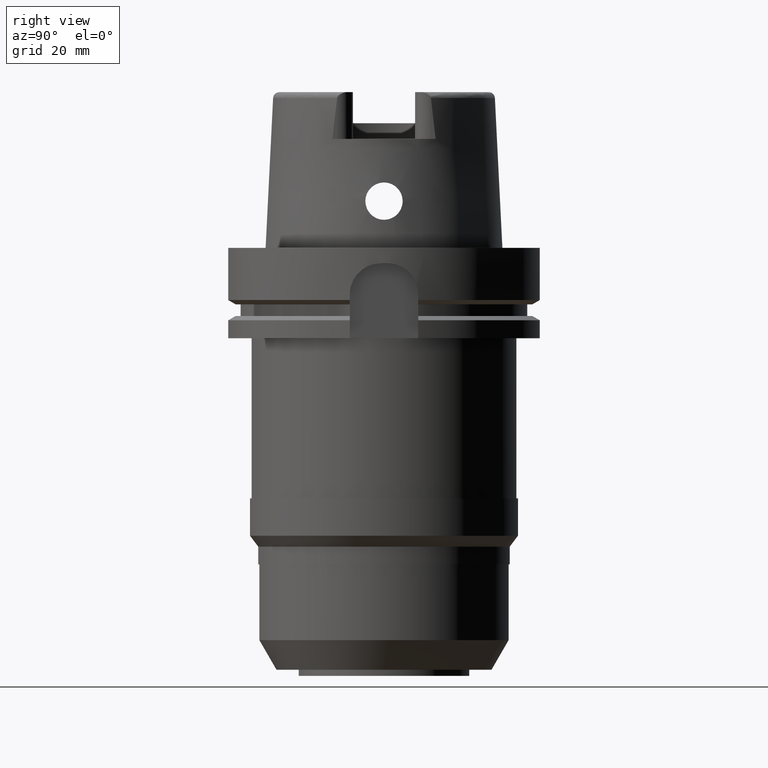
[diagram: clean part render]
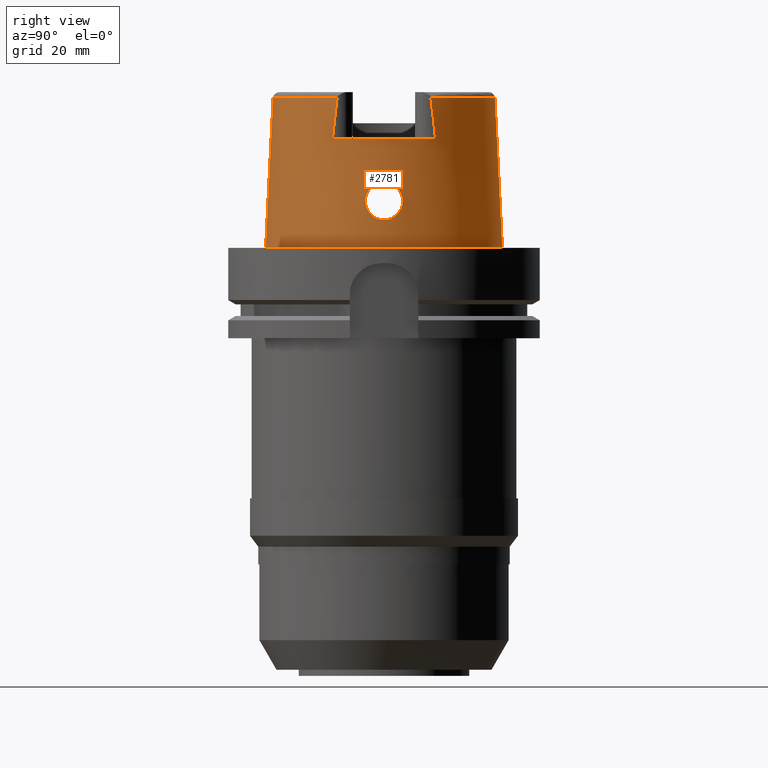
[diagram: same view with one face highlighted and labeled with its STEP entity id]
A machine part, right view. The second image highlights one B-rep face of the part: STEP entity #2781.
In plain terms, the highlighted conical surface has half-angle 2.862 deg.
Its self-contained STEP definition (entity closure, byte-faithful):
#207=CARTESIAN_POINT('',(3.225000552017E1,-1.506439828496E1,4.810004173311E1));
#212=CARTESIAN_POINT('',(0.E0,0.E0,4.809987853799E1));
#213=DIRECTION('',(0.E0,0.E0,-1.E0));
#214=DIRECTION('',(9.060280460805E-1,-4.232176505246E-1,0.E0));
#215=AXIS2_PLACEMENT_3D('',#212,#213,#214);
#238=DIRECTION('',(5.154182075151E-5,-4.993927430816E-2,-9.987522546783E-1));
#239=VECTOR('',#238,4.815996991514E1);
#240=CARTESIAN_POINT('',(-2.482252536761E-3,-3.559494263425E1,
4.809987853799E1));
#241=LINE('',#240,#239);
#293=CARTESIAN_POINT('',(3.224999527489E1,1.655287543599E1,3.5E1));
#294=CARTESIAN_POINT('',(3.224999527489E1,1.639226210430E1,3.646677430492E1));
#295=CARTESIAN_POINT('',(3.224999958003E1,1.606837255504E1,3.939292736372E1));
#296=CARTESIAN_POINT('',(3.225000855756E1,1.557203229378E1,4.375938270248E1));
#297=CARTESIAN_POINT('',(3.224998031234E1,1.523513271769E1,4.665592202925E1));
#298=CARTESIAN_POINT('',(3.224998031234E1,1.506460258816E1,4.809931688652E1));
#303=DIRECTION('',(-5.154182075159E-5,4.993927430816E-2,-9.987522546783E-1));
#304=VECTOR('',#303,4.815996991514E1);
#305=CARTESIAN_POINT('',(2.482252536765E-3,3.559494263425E1,4.809987853799E1));
#306=LINE('',#305,#304);
#310=CARTESIAN_POINT('',(3.225000552017E1,-1.506439828496E1,4.810004173311E1));
#311=CARTESIAN_POINT('',(3.225000552017E1,-1.523503289021E1,4.665577809747E1));
#312=CARTESIAN_POINT('',(3.225000026293E1,-1.557219472961E1,4.376011578007E1));
#313=CARTESIAN_POINT('',(3.224999079948E1,-1.606856473512E1,3.939344260743E1));
#314=CARTESIAN_POINT('',(3.225002129259E1,-1.639212166417E1,3.646699412941E1));
#315=CARTESIAN_POINT('',(3.225002129259E1,-1.655276054267E1,3.5E1));
#320=CARTESIAN_POINT('',(3.694998175923E1,-1.394597051989E-13,2.1E1));
#321=CARTESIAN_POINT('',(3.694998175923E1,-5.236335705299E-1,2.1E1));
#322=CARTESIAN_POINT('',(3.693410543298E1,-1.571767760804E0,2.086209925658E1));
#323=CARTESIAN_POINT('',(3.687080879441E1,-3.039493228903E0,2.025366474255E1));
#324=CARTESIAN_POINT('',(3.679101331926E1,-4.300222920726E0,1.928283760958E1));
#325=CARTESIAN_POINT('',(3.672650962015E1,-5.261062781963E0,1.802514352625E1));
#326=CARTESIAN_POINT('',(3.670708398467E1,-5.863659226400E0,1.656240722719E1));
#327=CARTESIAN_POINT('',(3.675209356062E1,-6.067749483430E0,1.500486461439E1));
#328=CARTESIAN_POINT('',(3.686489841208E1,-5.865334894686E0,1.344205196552E1));
#329=CARTESIAN_POINT('',(3.703209000139E1,-5.261857943299E0,1.197544080722E1));
#330=CARTESIAN_POINT('',(3.722304604183E1,-4.296369000015E0,1.071210915758E1));
#331=CARTESIAN_POINT('',(3.739936292475E1,-3.027007743276E0,9.738789454775E0));
#332=CARTESIAN_POINT('',(3.752122331157E1,-1.560397515004E0,9.135520788725E0));
#333=CARTESIAN_POINT('',(3.755000165825E1,-5.188928194064E-1,9.E0));
#334=CARTESIAN_POINT('',(3.755000165825E1,0.E0,9.E0));
#339=CARTESIAN_POINT('',(3.755000165825E1,0.E0,9.E0));
#340=CARTESIAN_POINT('',(3.755000165825E1,5.181344353179E-1,9.E0));
#341=CARTESIAN_POINT('',(3.752124845614E1,1.556205549035E0,9.135452083139E0));
#342=CARTESIAN_POINT('',(3.740111094064E1,3.009071337397E0,9.730058025423E0));
#343=CARTESIAN_POINT('',(3.722661675986E1,4.274847313847E0,1.069118436885E1));
#344=CARTESIAN_POINT('',(3.703524984132E1,5.248842302649E0,1.195119914056E1));
#345=CARTESIAN_POINT('',(3.686585496364E1,5.863515480283E0,1.342943106647E1));
#346=CARTESIAN_POINT('',(3.675177425375E1,6.068817524186E0,1.500759190798E1));
#347=CARTESIAN_POINT('',(3.670699429574E1,5.861200167016E0,1.657223922902E1));
#348=CARTESIAN_POINT('',(3.672678544665E1,5.257000663823E0,1.803104809936E1));
#349=CARTESIAN_POINT('',(3.679101944815E1,4.299990013988E0,1.928228496344E1));
#350=CARTESIAN_POINT('',(3.687062166845E1,3.042744981947E0,2.025171888453E1));
#351=CARTESIAN_POINT('',(3.693404976500E1,1.574195524507E0,2.086163408373E1));
#352=CARTESIAN_POINT('',(3.694998175923E1,5.246774663234E-1,2.1E1));
#353=CARTESIAN_POINT('',(3.694998175923E1,-1.394597051989E-13,2.1E1));
#388=CARTESIAN_POINT('',(0.E0,0.E0,3.5E1));
#389=DIRECTION('',(0.E0,0.E0,-1.E0));
#390=DIRECTION('',(8.896561898443E-1,4.566309931135E-1,0.E0));
#391=AXIS2_PLACEMENT_3D('',#388,#389,#390);
#1959=CARTESIAN_POINT('',(0.E0,0.E0,1.023181539495E-12));
#1960=DIRECTION('',(0.E0,0.E0,1.E0));
#1961=DIRECTION('',(0.E0,-1.E0,0.E0));
#1962=AXIS2_PLACEMENT_3D('',#1959,#1960,#1961);
#2211=CARTESIAN_POINT('',(0.E0,0.E0,4.809987853799E1));
#2212=DIRECTION('',(0.E0,0.E0,-1.E0));
#2213=DIRECTION('',(0.E0,1.E0,0.E0));
#2214=AXIS2_PLACEMENT_3D('',#2211,#2212,#2213);
#2318=CARTESIAN_POINT('',(0.E0,-3.559494289391E1,4.809987853799E1));
#2319=VERTEX_POINT('',#2318);
#2320=CARTESIAN_POINT('',(0.E0,-3.800001658252E1,6.821210263297E-13));
#2321=VERTEX_POINT('',#2320);
#2322=CARTESIAN_POINT('',(0.E0,3.800001658252E1,1.023181539495E-12));
#2323=VERTEX_POINT('',#2322);
#2324=CARTESIAN_POINT('',(2.482252536765E-3,3.559494263425E1,4.809987853799E1));
#2325=VERTEX_POINT('',#2324);
#2330=CARTESIAN_POINT('',(3.224994093704E1,1.506456999646E1,4.809987853799E1));
#2331=VERTEX_POINT('',#2330);
#2334=VERTEX_POINT('',#207);
#2335=CARTESIAN_POINT('',(3.225E1,1.655285457013E1,3.5E1));
#2336=CARTESIAN_POINT('',(3.225E1,-1.655285457013E1,3.5E1));
#2337=VERTEX_POINT('',#2335);
#2338=VERTEX_POINT('',#2336);
#2339=VERTEX_POINT('',#320);
#2340=VERTEX_POINT('',#334);
#2755=CARTESIAN_POINT('',(0.E0,0.E0,2.404993926900E1));
#2756=DIRECTION('',(0.E0,0.E0,-1.E0));
#2757=DIRECTION('',(0.E0,-1.E0,0.E0));
#2758=AXIS2_PLACEMENT_3D('',#2755,#2756,#2757);
#2759=CONICAL_SURFACE('',#2758,3.679747973821E1,2.8625E0);
#2761=ORIENTED_EDGE('',*,*,#2760,.F.);
#2763=ORIENTED_EDGE('',*,*,#2762,.T.);
#2765=ORIENTED_EDGE('',*,*,#2764,.F.);
#2766=ORIENTED_EDGE('',*,*,#2740,.T.);
#2768=ORIENTED_EDGE('',*,*,#2767,.F.);
#2769=ORIENTED_EDGE('',*,*,#2736,.F.);
#2770=ORIENTED_EDGE('',*,*,#2708,.F.);
#2772=ORIENTED_EDGE('',*,*,#2771,.T.);
#2773=EDGE_LOOP('',(#2761,#2763,#2765,#2766,#2768,#2769,#2770,#2772));
#2774=FACE_OUTER_BOUND('',#2773,.F.);
#2776=ORIENTED_EDGE('',*,*,#2775,.T.);
#2778=ORIENTED_EDGE('',*,*,#2777,.T.);
#2779=EDGE_LOOP('',(#2776,#2778));
#2780=FACE_BOUND('',#2779,.F.);
#216=CIRCLE('',#215,3.559494289391E1);
#299=B_SPLINE_CURVE_WITH_KNOTS('',3,(#293,#294,#295,#296,#297,#298),
.UNSPECIFIED.,.F.,.F.,(4,1,1,4),(0.E0,3.333333333333E-1,6.666666666667E-1,1.E0),
.UNSPECIFIED.);
#316=B_SPLINE_CURVE_WITH_KNOTS('',3,(#310,#311,#312,#313,#314,#315),
.UNSPECIFIED.,.F.,.F.,(4,1,1,4),(0.E0,3.333333333333E-1,6.666666666667E-1,1.E0),
.UNSPECIFIED.);
#335=B_SPLINE_CURVE_WITH_KNOTS('',3,(#320,#321,#322,#323,#324,#325,#326,#327,
#328,#329,#330,#331,#332,#333,#334),.UNSPECIFIED.,.F.,.F.,(4,1,1,1,1,1,1,1,1,1,
1,1,4),(0.E0,8.333333333333E-2,1.666666666667E-1,2.5E-1,3.333333333333E-1,
4.166666666667E-1,5.E-1,5.833333333333E-1,6.666666666667E-1,7.5E-1,
8.333333333333E-1,9.166666666667E-1,1.E0),.UNSPECIFIED.);
#354=B_SPLINE_CURVE_WITH_KNOTS('',3,(#339,#340,#341,#342,#343,#344,#345,#346,
#347,#348,#349,#350,#351,#352,#353),.UNSPECIFIED.,.F.,.F.,(4,1,1,1,1,1,1,1,1,1,
1,1,4),(0.E0,8.333333333333E-2,1.666666666667E-1,2.5E-1,3.333333333333E-1,
4.166666666667E-1,5.E-1,5.833333333333E-1,6.666666666667E-1,7.5E-1,
8.333333333333E-1,9.166666666667E-1,1.E0),.UNSPECIFIED.);
#392=CIRCLE('',#391,3.624995854370E1);
#1963=CIRCLE('',#1962,3.800001658252E1);
#2215=CIRCLE('',#2214,3.559494289391E1);
#2708=EDGE_CURVE('',#2334,#2319,#216,.T.);
#2736=EDGE_CURVE('',#2319,#2321,#241,.T.);
#2740=EDGE_CURVE('',#2325,#2323,#306,.T.);
#2760=EDGE_CURVE('',#2337,#2338,#392,.T.);
#2762=EDGE_CURVE('',#2337,#2331,#299,.T.);
#2764=EDGE_CURVE('',#2325,#2331,#2215,.T.);
#2767=EDGE_CURVE('',#2321,#2323,#1963,.T.);
#2771=EDGE_CURVE('',#2334,#2338,#316,.T.);
#2775=EDGE_CURVE('',#2339,#2340,#335,.T.);
#2777=EDGE_CURVE('',#2340,#2339,#354,.T.);
#2781=ADVANCED_FACE('',(#2774,#2780),#2759,.T.);